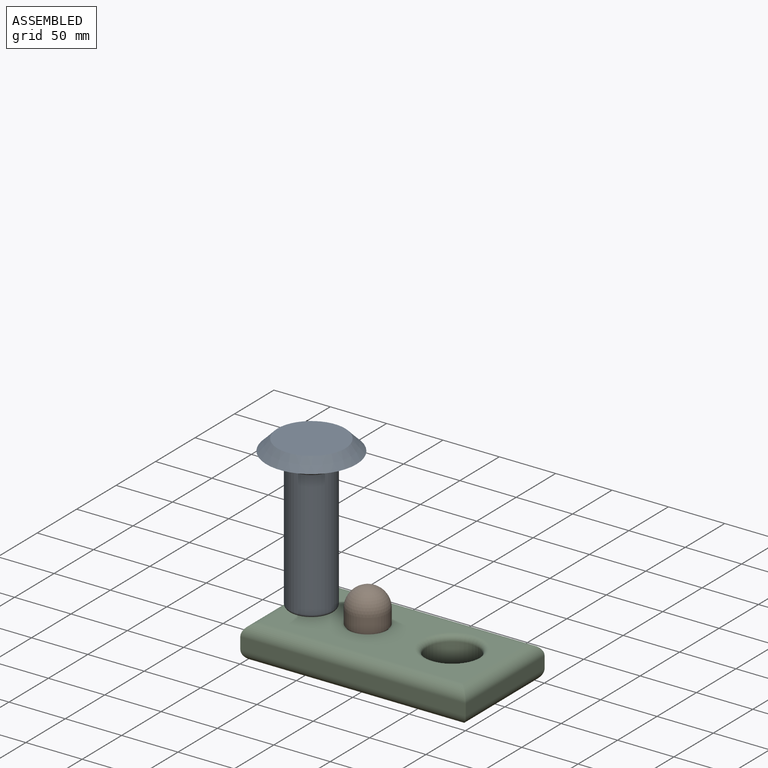
[diagram: assembled view]
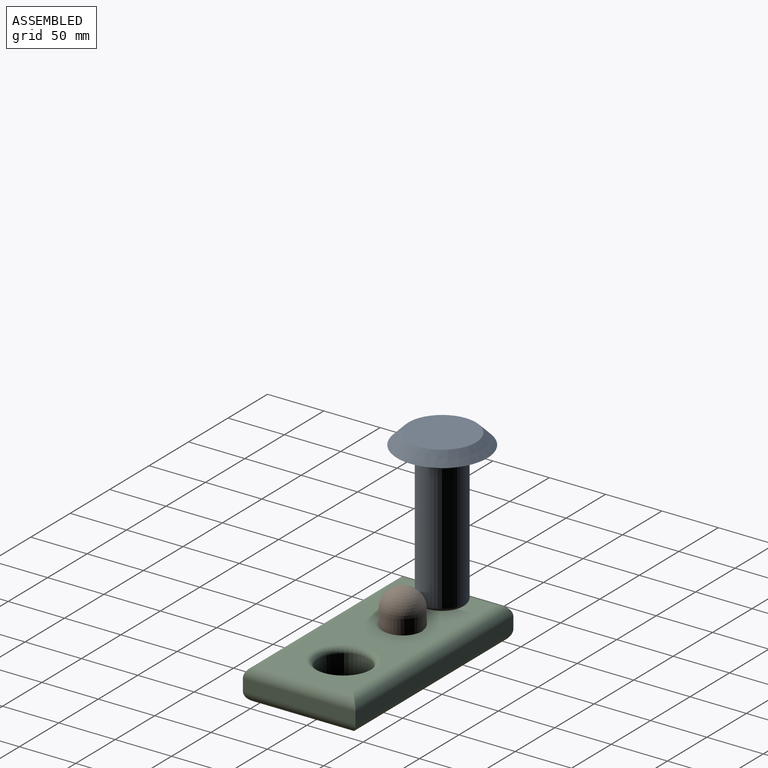
[diagram: assembled view, second angle]
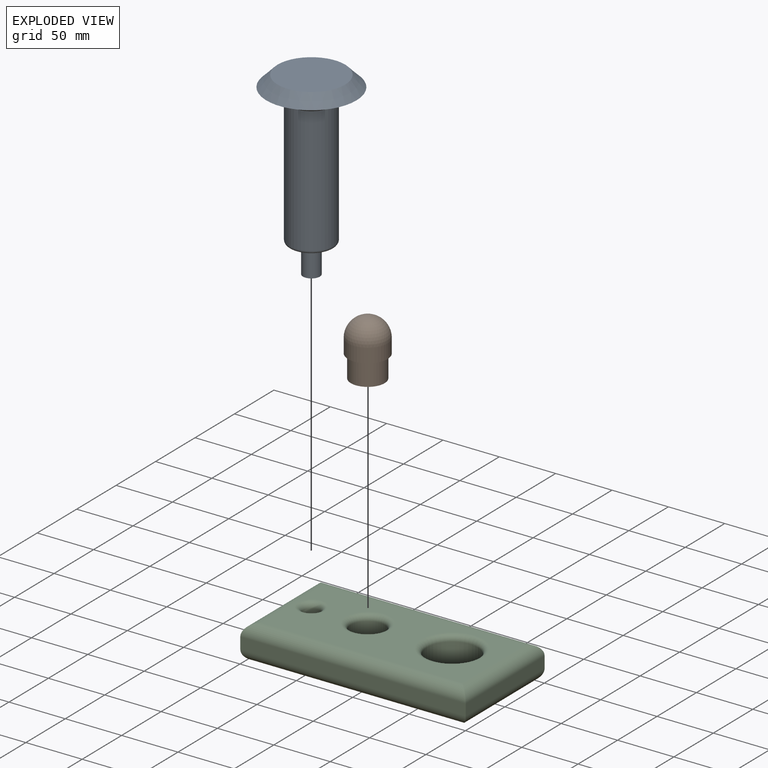
[diagram: exploded view]
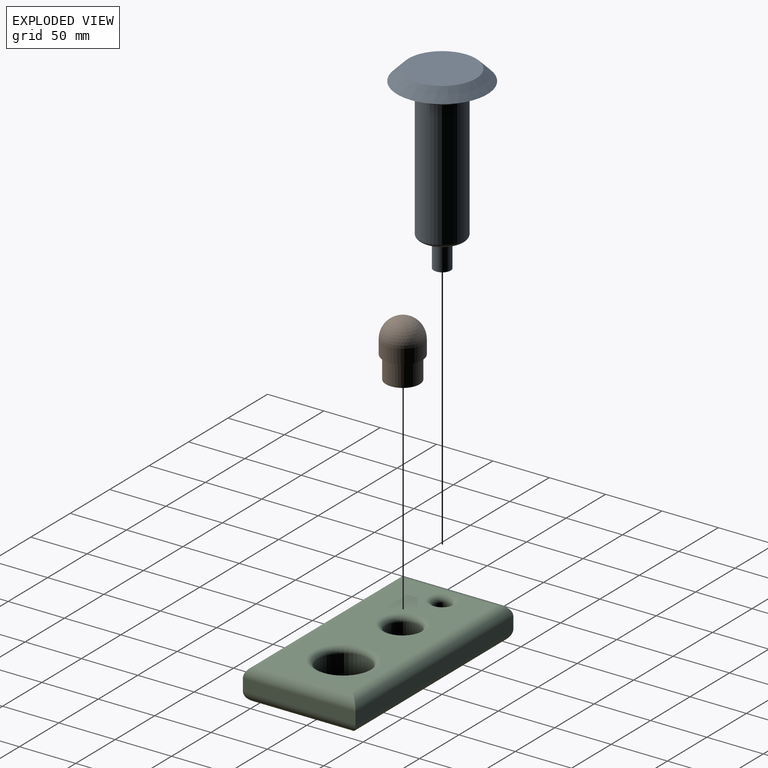
[diagram: exploded view, second angle]
ASSEMBLY  parts=3 mates=2
PART A: 10 faces, bbox 160x80x80 mm
  f0: plane 15x15mm, normal (-1,0,0), area 176.7mm2, adj f6
  f1: plane 60x60mm, normal (1,0,0), area 2827.4mm2, adj f9
  f2: plane 80x80mm, normal (-1,0,0), area 2278.1mm2, adj f3,f9
  f3: cylinder r=29.58mm len=59.16mm, axis (-1,0,0), area 74.5mm2, adj f2,f8
  f4: cylinder r=20mm len=112.02mm, axis (-1,0,0), area 14077mm2, adj f7,f8
  f5: plane 34x34mm, normal (-1,0,0), area 731.2mm2, adj f6,f7
  f6: cylinder r=7.5mm len=25mm, axis (-1,0,0), area 1178.1mm2, adj f0,f5
  f7: torus R=17mm, axis (1,0,0), area 559.9mm2, adj f4,f5
  f8: cone r=19.58mm half-angle=45deg, axis (1,0,0), area 2109.7mm2, adj f3,f4
  f9: cone r=40mm half-angle=45deg, axis (-1,0,0), area 3110mm2, adj f1,f2
PART B: 5 faces, bbox 50x35x35 mm
  f0: plane 30x30mm, normal (-1,0,0), area 706.9mm2, adj f4
  f1: sphere r=17.5mm, area 1924.2mm2, adj f2
  f2: cylinder r=17.5mm len=35mm, axis (-1,0,0), area 1374.4mm2, adj f1,f3
  f3: plane 35x35mm, normal (-1,0,0), area 255.3mm2, adj f2,f4
  f4: cylinder r=15mm len=30mm, axis (-1,0,0), area 1885mm2, adj f0,f3
PART C: 20 faces, bbox 200x100x30 mm
  f0: plane 200x10mm, normal (0,1,0), area 2000mm2, adj f1,f6,f9,f13
  f1: plane 100x10mm, normal (-1,0,0), area 1000mm2, adj f0,f2,f10,f14
  f2: plane 200x10mm, normal (0,-1,0), area 2000mm2, adj f1,f6,f12,f16
  f3: cylinder r=7.5mm len=25mm, axis (0,0,1), area 1178.1mm2, adj f7,f19
  f4: cylinder r=15mm len=30mm, axis (0,0,1), area 2356.2mm2, adj f7,f17
  f5: cylinder r=22.5mm len=45mm, axis (0,0,1), area 3534.3mm2, adj f7,f18
  f6: plane 100x10mm, normal (1,0,0), area 1000mm2, adj f0,f2,f11,f15
  f7: plane 180x80mm, normal (0,0,-1), area 11926mm2, adj f3,f4,f5,f13,f14,f15,f16
  f8: plane 180x80mm, normal (0,0,1), area 10276.7mm2, adj f9,f10,f11,f12,f17,f18,f19
  f9: cylinder r=10mm len=200mm, axis (-1,0,0), area 3027.4mm2, adj f0,f8,f10,f11
  f10: cylinder r=10mm len=100mm, axis (0,-1,0), area 1456.6mm2, adj f1,f8,f9,f12
  f11: cylinder r=10mm len=100mm, axis (0,1,0), area 1456.6mm2, adj f6,f8,f9,f12
  f12: cylinder r=10mm len=200mm, axis (1,0,0), area 3027.4mm2, adj f2,f8,f10,f11
  f13: cylinder r=10mm len=200mm, axis (1,0,0), area 3027.4mm2, adj f0,f7,f14,f15
  f14: cylinder r=10mm len=100mm, axis (0,1,0), area 1456.6mm2, adj f1,f7,f13,f16
  f15: cylinder r=10mm len=100mm, axis (0,-1,0), area 1456.6mm2, adj f6,f7,f13,f16
  f16: cylinder r=10mm len=200mm, axis (-1,0,0), area 3027.4mm2, adj f2,f7,f14,f15
  f17: torus R=20mm, axis (0,0,1), area 829.9mm2, adj f4,f8
  f18: torus R=27.5mm, axis (0,0,1), area 1200mm2, adj f5,f8
  f19: torus R=12.5mm, axis (0,0,1), area 459.8mm2, adj f3,f8
PLACE A rot(axis=(0.71,0,0.71),180deg) t=(-71.65,0,46.26)mm
PLACE B rot(axis=(-0.58,-0.58,-0.58),120deg) t=(-21.65,0,10.99)mm
PLACE C at identity
MATE fastened B.f2 <-> C.f4  axis (0,0,-1) through (-21.65,0,0)mm
MATE fastened A.f3 <-> C.f3  axis (0,0,-1) through (-71.65,0,0)mm
